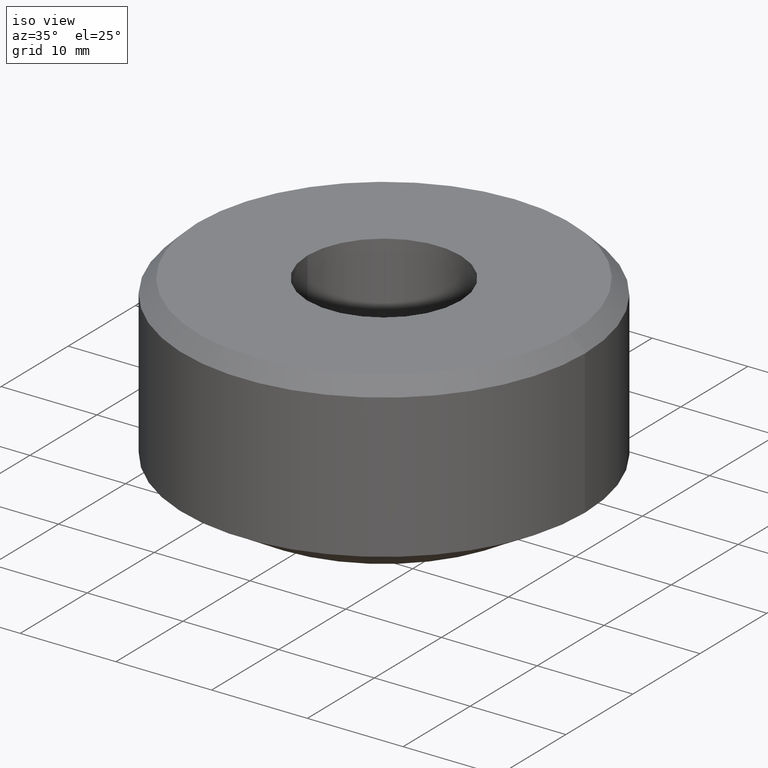
[diagram: clean part render]
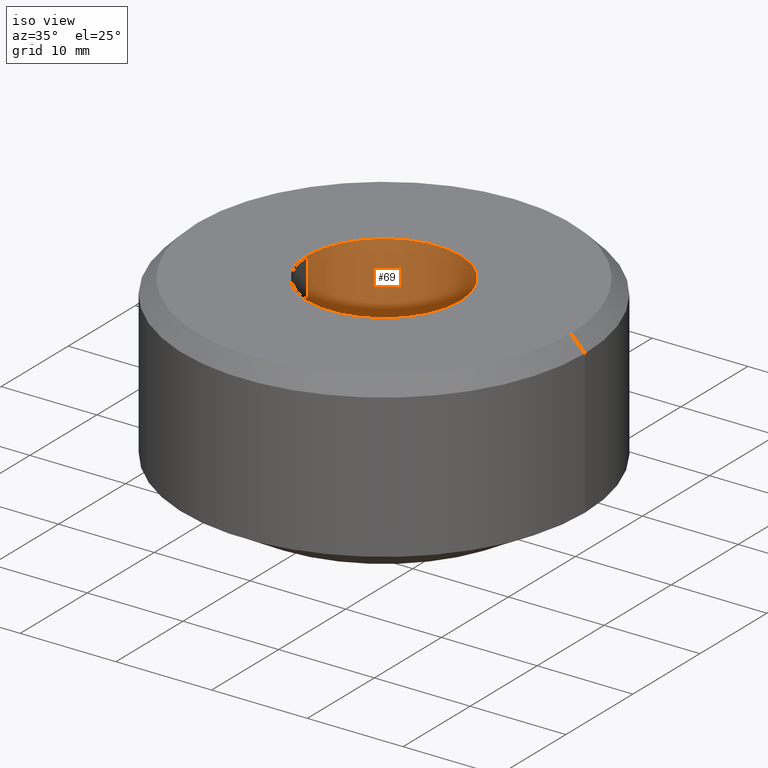
[diagram: same view with one face highlighted and labeled with its STEP entity id]
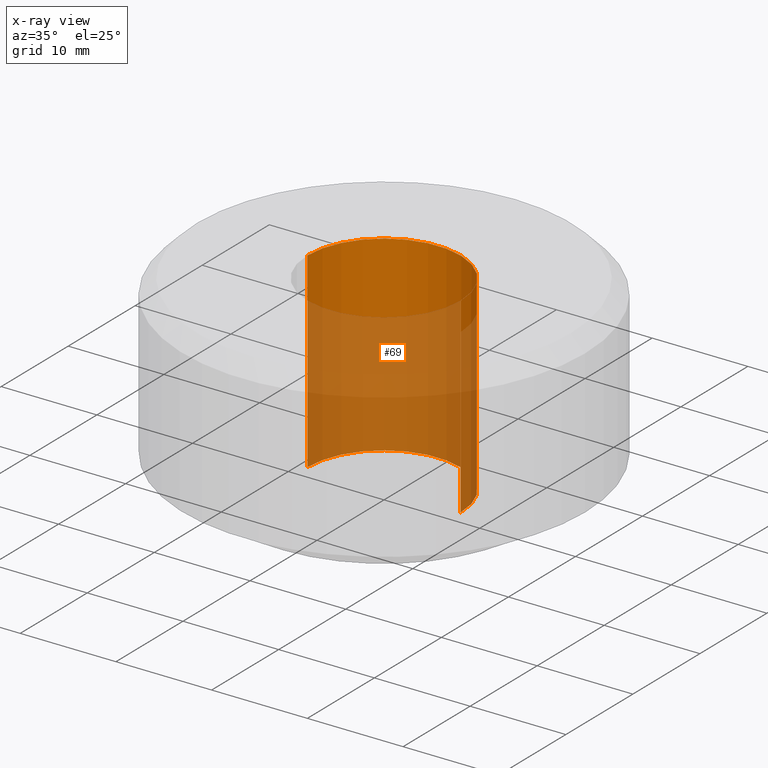
[diagram: x-ray of the same camera — body ghosted, the highlighted face saturated]
A machine part, iso view. The second image highlights one B-rep face of the part: STEP entity #69.
The next image is the same camera in x-ray: the body ghosted, the highlighted face saturated — about 68% of this face is hidden behind the body in this view.
In plain terms, the highlighted cylindrical surface (partial cylindrical patch) has radius 8 mm, axis along (-0, -0, 1).
Its self-contained STEP definition (entity closure, byte-faithful):
#23 = CARTESIAN_POINT ( 'NONE',  ( 8.000000000000000000, 0.0000000000000000000, 43.26054273766887100 ) ) ;
#35 = EDGE_CURVE ( 'NONE', #316, #75, #282, .T. ) ;
#40 = ORIENTED_EDGE ( 'NONE', *, *, #246, .F. ) ;
#44 = VECTOR ( 'NONE', #102, 1000.000000000000000 ) ;
#50 = DIRECTION ( 'NONE',  ( -0.0000000000000000000, -0.0000000000000000000, 1.000000000000000000 ) ) ;
#64 = DIRECTION ( 'NONE',  ( -0.0000000000000000000, -0.0000000000000000000, 1.000000000000000000 ) ) ;
#69 = ADVANCED_FACE ( 'NONE', ( #271 ), #221, .F. ) ;
#73 = CARTESIAN_POINT ( 'NONE',  ( 0.0000000000000000000, 0.0000000000000000000, 43.26054273766887100 ) ) ;
#75 = VERTEX_POINT ( 'NONE', #182 ) ;
#76 = DIRECTION ( 'NONE',  ( 1.000000000000000000, 0.0000000000000000000, 0.0000000000000000000 ) ) ;
#83 = AXIS2_PLACEMENT_3D ( 'NONE', #160, #50, #76 ) ;
#97 = DIRECTION ( 'NONE',  ( 1.000000000000000000, 0.0000000000000000000, 0.0000000000000000000 ) ) ;
#101 = CARTESIAN_POINT ( 'NONE',  ( -8.000000000000000000, 9.797174393178825700E-016, 43.26054273766887100 ) ) ;
#102 = DIRECTION ( 'NONE',  ( -0.0000000000000000000, -0.0000000000000000000, 1.000000000000000000 ) ) ;
#105 = AXIS2_PLACEMENT_3D ( 'NONE', #73, #296, #97 ) ;
#133 = CIRCLE ( 'NONE', #83, 8.000000000000000000 ) ;
#143 = EDGE_CURVE ( 'NONE', #151, #75, #133, .T. ) ;
#147 = VERTEX_POINT ( 'NONE', #300 ) ;
#151 = VERTEX_POINT ( 'NONE', #163 ) ;
#160 = CARTESIAN_POINT ( 'NONE',  ( 0.0000000000000000000, 0.0000000000000000000, 10.00000000000000200 ) ) ;
#163 = CARTESIAN_POINT ( 'NONE',  ( 8.000000000000000000, 0.0000000000000000000, 10.00000000000000200 ) ) ;
#182 = CARTESIAN_POINT ( 'NONE',  ( -8.000000000000000000, 9.797174393178825700E-016, 10.00000000000000200 ) ) ;
#190 = DIRECTION ( 'NONE',  ( -0.0000000000000000000, -0.0000000000000000000, 1.000000000000000000 ) ) ;
#195 = CARTESIAN_POINT ( 'NONE',  ( -8.000000000000000000, 9.797174393178825700E-016, -10.00000000000000200 ) ) ;
#202 = EDGE_LOOP ( 'NONE', ( #285, #40, #348, #304 ) ) ;
#221 = CYLINDRICAL_SURFACE ( 'NONE', #105, 8.000000000000000000 ) ;
#237 = CARTESIAN_POINT ( 'NONE',  ( 0.0000000000000000000, 0.0000000000000000000, -10.00000000000000200 ) ) ;
#239 = CIRCLE ( 'NONE', #349, 8.000000000000000000 ) ;
#246 = EDGE_CURVE ( 'NONE', #147, #316, #239, .T. ) ;
#264 = DIRECTION ( 'NONE',  ( 1.000000000000000000, 0.0000000000000000000, 0.0000000000000000000 ) ) ;
#271 = FACE_OUTER_BOUND ( 'NONE', #202, .T. ) ;
#279 = VECTOR ( 'NONE', #190, 1000.000000000000000 ) ;
#282 = LINE ( 'NONE', #101, #44 ) ;
#285 = ORIENTED_EDGE ( 'NONE', *, *, #35, .F. ) ;
#296 = DIRECTION ( 'NONE',  ( -0.0000000000000000000, -0.0000000000000000000, 1.000000000000000000 ) ) ;
#300 = CARTESIAN_POINT ( 'NONE',  ( 8.000000000000000000, 0.0000000000000000000, -10.00000000000000200 ) ) ;
#301 = EDGE_CURVE ( 'NONE', #147, #151, #308, .T. ) ;
#304 = ORIENTED_EDGE ( 'NONE', *, *, #143, .T. ) ;
#308 = LINE ( 'NONE', #23, #279 ) ;
#316 = VERTEX_POINT ( 'NONE', #195 ) ;
#348 = ORIENTED_EDGE ( 'NONE', *, *, #301, .T. ) ;
#349 = AXIS2_PLACEMENT_3D ( 'NONE', #237, #64, #264 ) ;